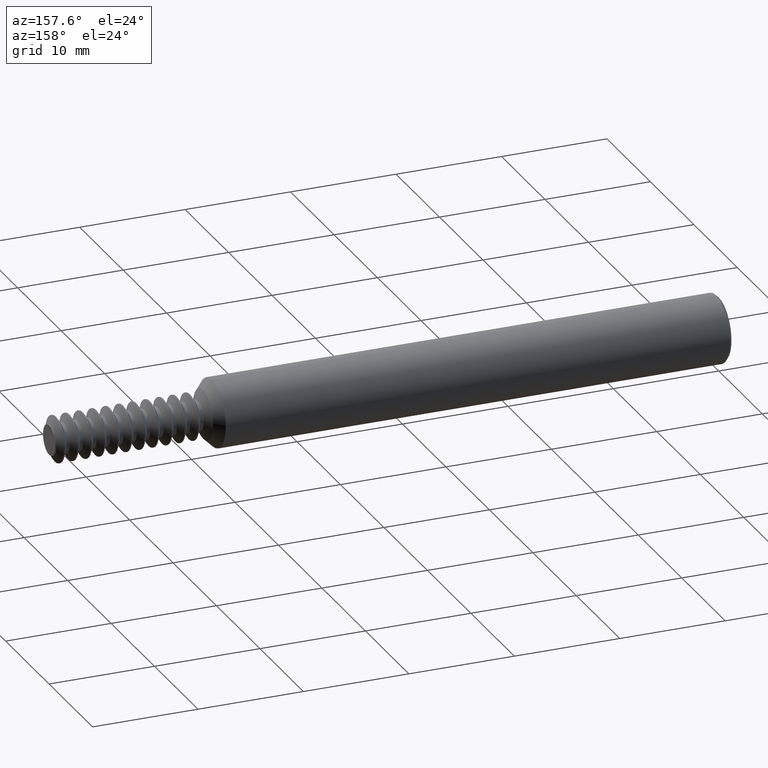
[diagram: clean part render]
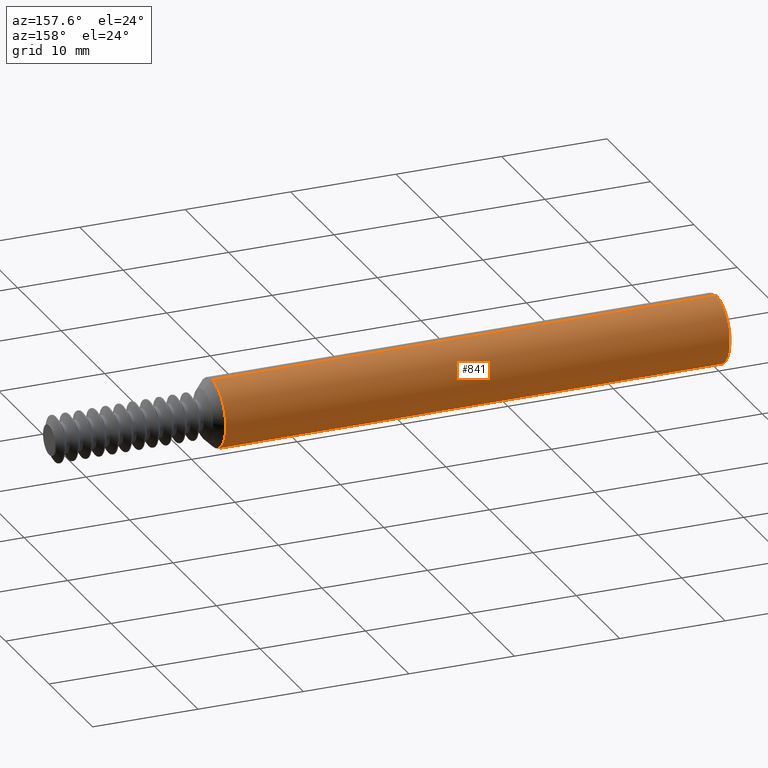
[diagram: same view with one face highlighted and labeled with its STEP entity id]
A machine part, auxiliary view. The second image highlights one B-rep face of the part: STEP entity #841.
In plain terms, the highlighted cylindrical surface (edge-blend (fillet) strip) has radius 3.1712 mm, axis along (-1, -0, -0).
Its self-contained STEP definition (entity closure, byte-faithful):
#29 = CARTESIAN_POINT ( 'NONE',  ( 1.892150000000000221, 0.000000000000000000, 0.000000000000000000 ) ) ;
#49 = EDGE_CURVE ( 'NONE', #179, #921, #242, .T. ) ;
#60 = CYLINDRICAL_SURFACE ( 'NONE', #477, 0.1248500000000000026 ) ;
#117 = ORIENTED_EDGE ( 'NONE', *, *, #507, .T. ) ;
#179 = VERTEX_POINT ( 'NONE', #813 ) ;
#242 = CIRCLE ( 'NONE', #1031, 0.1248500000000000026 ) ;
#271 = CARTESIAN_POINT ( 'NONE',  ( 0.000000000000000000, 0.000000000000000000, 0.000000000000000000 ) ) ;
#406 = DIRECTION ( 'NONE',  ( 1.000000000000000000, 0.000000000000000000, 0.000000000000000000 ) ) ;
#477 = AXIS2_PLACEMENT_3D ( 'NONE', #271, #1462, #1065 ) ;
#507 = EDGE_CURVE ( 'NONE', #1294, #1546, #1456, .T. ) ;
#553 = CARTESIAN_POINT ( 'NONE',  ( 1.892150000000000221, 1.528971528735470422E-17, -0.1248500000000000026 ) ) ;
#629 = DIRECTION ( 'NONE',  ( -1.000000000000000000, -0.000000000000000000, -0.000000000000000000 ) ) ;
#662 = FACE_OUTER_BOUND ( 'NONE', #1757, .T. ) ;
#813 = CARTESIAN_POINT ( 'NONE',  ( 0.009999999999999620304, 0.000000000000000000, -0.1248500000000000026 ) ) ;
#824 = DIRECTION ( 'NONE',  ( 0.000000000000000000, 0.000000000000000000, 1.000000000000000000 ) ) ;
#841 = ADVANCED_FACE ( 'NONE', ( #662 ), #60, .T. ) ;
#921 = VERTEX_POINT ( 'NONE', #1881 ) ;
#925 = CARTESIAN_POINT ( 'NONE',  ( 1.892150000000000221, 0.000000000000000000, 0.1248500000000000026 ) ) ;
#977 = ORIENTED_EDGE ( 'NONE', *, *, #1006, .T. ) ;
#1006 = EDGE_CURVE ( 'NONE', #1546, #179, #2371, .T. ) ;
#1031 = AXIS2_PLACEMENT_3D ( 'NONE', #2042, #406, #1837 ) ;
#1065 = DIRECTION ( 'NONE',  ( 0.000000000000000000, 0.000000000000000000, 1.000000000000000000 ) ) ;
#1168 = LINE ( 'NONE', #1583, #2411 ) ;
#1294 = VERTEX_POINT ( 'NONE', #925 ) ;
#1383 = ORIENTED_EDGE ( 'NONE', *, *, #1494, .F. ) ;
#1390 = CARTESIAN_POINT ( 'NONE',  ( 0.000000000000000000, 1.528971528735470422E-17, -0.1248500000000000026 ) ) ;
#1396 = DIRECTION ( 'NONE',  ( -1.000000000000000000, -0.000000000000000000, -0.000000000000000000 ) ) ;
#1456 = CIRCLE ( 'NONE', #1487, 0.1248500000000000026 ) ;
#1462 = DIRECTION ( 'NONE',  ( -1.000000000000000000, -0.000000000000000000, -0.000000000000000000 ) ) ;
#1487 = AXIS2_PLACEMENT_3D ( 'NONE', #29, #629, #824 ) ;
#1494 = EDGE_CURVE ( 'NONE', #1294, #921, #1168, .T. ) ;
#1546 = VERTEX_POINT ( 'NONE', #553 ) ;
#1583 = CARTESIAN_POINT ( 'NONE',  ( 0.000000000000000000, 0.000000000000000000, 0.1248500000000000026 ) ) ;
#1757 = EDGE_LOOP ( 'NONE', ( #117, #977, #2239, #1383 ) ) ;
#1764 = VECTOR ( 'NONE', #2416, 39.37007874015748143 ) ;
#1837 = DIRECTION ( 'NONE',  ( 0.000000000000000000, 0.000000000000000000, -1.000000000000000000 ) ) ;
#1881 = CARTESIAN_POINT ( 'NONE',  ( 0.009999999999999620304, 1.528971528735470422E-17, 0.1248500000000000026 ) ) ;
#2042 = CARTESIAN_POINT ( 'NONE',  ( 0.009999999999999620304, 0.000000000000000000, 0.000000000000000000 ) ) ;
#2239 = ORIENTED_EDGE ( 'NONE', *, *, #49, .T. ) ;
#2371 = LINE ( 'NONE', #1390, #1764 ) ;
#2411 = VECTOR ( 'NONE', #1396, 39.37007874015748143 ) ;
#2416 = DIRECTION ( 'NONE',  ( -1.000000000000000000, -0.000000000000000000, -0.000000000000000000 ) ) ;